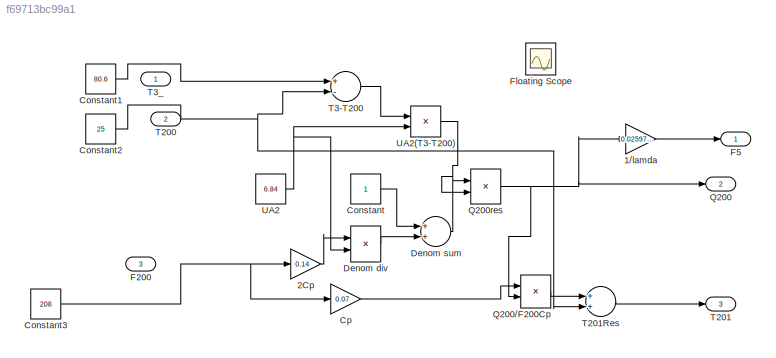
MODEL slx_f69713bc99a1
KIND model
CONFIG AbsTol = auto
CONFIG EnableMultiTasking = off
CONFIG FixedStep = auto
CONFIG MaxStep = auto
CONFIG MinStep = auto
CONFIG RelTol = 1e-3
CONFIG SampleTimeConstraint = Unconstrained
CONFIG Solver = VariableStepAuto
CONFIG SolverName = VariableStepAuto
CONFIG StartTime = 0.0
CONFIG StopTime = 10.0
BLOCK [Gain] 1//lamda
  Gain = 0.02597402597
  OutDataTypeStr = Inherit: Inherit via internal rule
  ParamDataTypeStr = Inherit: Inherit via internal rule
  SaturateOnIntegerOverflow = off
BLOCK [Gain] 2Cp
  Gain = 0.14
  OutDataTypeStr = Inherit: Inherit via internal rule
  ParamDataTypeStr = Inherit: Inherit via internal rule
  SaturateOnIntegerOverflow = off
BLOCK [Constant] Constant
BLOCK [Constant] Constant1
  Value = 80.6
BLOCK [Constant] Constant2
  Value = 25
BLOCK [Constant] Constant3
  Value = 208
BLOCK [Gain] Cp
  Gain = 0.07
  OutDataTypeStr = Inherit: Inherit via internal rule
  ParamDataTypeStr = Inherit: Inherit via internal rule
  SaturateOnIntegerOverflow = off
BLOCK [Product] Denom div
  InputSameDT = off
  Inputs = /*
  OutDataTypeStr = Inherit: Inherit via internal rule
  Ports = [2, 1]
  RndMeth = Floor
  SaturateOnIntegerOverflow = off
BLOCK [Sum] Denom sum
  InputSameDT = off
  OutDataTypeStr = Inherit: Inherit via internal rule
  Ports = [2, 1]
  SaturateOnIntegerOverflow = off
BLOCK [Inport] F200
  IconDisplay = Port number
  Port = 3
BLOCK [Outport] F5
  IconDisplay = Port number
BLOCK [Scope] Floating Scope
  Floating = on
  NumInputPorts = 1
  Ports = []
  ScopeSpecificationString = Simulink.scopes.TimeScopeBlockCfg('CurrentConfiguration', extmgr.ConfigurationSet(extmgr.Configuration('Core','General UI',true),extmgr.Configuration('Core','Source UI',true),extmgr.Configuration('Sources','WiredSimulink',true),extmgr.Configuration('Visuals','Time Domain',true,'SerializedDisplays',{struct('MinYLimReal','207.96586','MaxYLimReal','407.96586','YLabelReal','','MinYLimMag','207.96586',...<+1475ch>
BLOCK [Outport] Q200
  IconDisplay = Port number
  Port = 2
BLOCK [Product] Q200//F200Cp
  InputSameDT = off
  Inputs = /*
  OutDataTypeStr = Inherit: Inherit via internal rule
  Ports = [2, 1]
  RndMeth = Floor
  SaturateOnIntegerOverflow = off
BLOCK [Product] Q200res
  InputSameDT = off
  Inputs = /*
  OutDataTypeStr = Inherit: Inherit via internal rule
  Ports = [2, 1]
  RndMeth = Floor
  SaturateOnIntegerOverflow = off
BLOCK [Inport] T200
  IconDisplay = Port number
  Port = 2
BLOCK [Outport] T201
  IconDisplay = Port number
  Port = 3
BLOCK [Sum] T201Res
  InputSameDT = off
  OutDataTypeStr = Inherit: Inherit via internal rule
  Ports = [2, 1]
  SaturateOnIntegerOverflow = off
BLOCK [Sum] T3-T200
  InputSameDT = off
  Inputs = +-
  OutDataTypeStr = Inherit: Inherit via internal rule
  Ports = [2, 1]
  SaturateOnIntegerOverflow = off
BLOCK [Inport] T3_
  IconDisplay = Port number
BLOCK [Constant] UA2
  Value = 6.84
BLOCK [Product] UA2(T3-T200)
  InputSameDT = off
  OutDataTypeStr = Inherit: Inherit via internal rule
  Ports = [2, 1]
  RndMeth = Floor
  SaturateOnIntegerOverflow = off
LINE 1//lamda:1 -> F5:1
LINE 2Cp:1 -> Denom div:1
LINE Constant1:1 -> T3-T200:1
NET Constant2:1 -> T201Res:2, T3-T200:2
NET Constant3:1 -> 2Cp:1, Cp:1
LINE Constant:1 -> Denom sum:1
LINE Cp:1 -> Q200//F200Cp:1
LINE Denom div:1 -> Denom sum:2
LINE Denom sum:1 -> Q200res:1
LINE Q200//F200Cp:1 -> T201Res:1
NET Q200res:1 -> 1//lamda:1, Q200//F200Cp:2, Q200:1
LINE T201Res:1 -> T201:1
LINE T3-T200:1 -> UA2(T3-T200):1
LINE UA2(T3-T200):1 -> Q200res:2
NET UA2:1 -> Denom div:2, UA2(T3-T200):2
note: NET lines group one-source signal fan-out (src -> all destinations, sorted); 1:1 wires keep LINE
